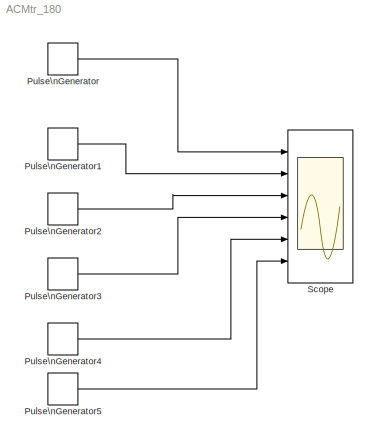
MODEL ACMtr_180
KIND model
BLOCK [DiscretePulseGenerator] Pulse\nGenerator
  Period = 20e-3
  Ports = [0, 1]
  PulseType = Time based
  PulseWidth = 50
  SID = 1
BLOCK [DiscretePulseGenerator] Pulse\nGenerator1
  Period = 20e-3
  PhaseDelay = 20e-3/6
  Ports = [0, 1]
  PulseType = Time based
  PulseWidth = 50
  SID = 2
BLOCK [DiscretePulseGenerator] Pulse\nGenerator2
  Period = 20e-3
  PhaseDelay = 2*(20e-3/6)
  Ports = [0, 1]
  PulseType = Time based
  PulseWidth = 50
  SID = 3
BLOCK [DiscretePulseGenerator] Pulse\nGenerator3
  Period = 20e-3
  PhaseDelay = 3*(20e-3/6)
  Ports = [0, 1]
  PulseType = Time based
  PulseWidth = 50
  SID = 4
BLOCK [DiscretePulseGenerator] Pulse\nGenerator4
  Period = 20e-3
  PhaseDelay = 4*(20e-3/6)
  Ports = [0, 1]
  PulseType = Time based
  PulseWidth = 50
  SID = 5
BLOCK [DiscretePulseGenerator] Pulse\nGenerator5
  Period = 20e-3
  PhaseDelay = 5*(20e-3/6)
  Ports = [0, 1]
  PulseType = Time based
  PulseWidth = 50
  SID = 6
BLOCK [Scope] Scope
  DataFormat = StructureWithTime
  Decimation = 1
  Floating = off
  Grid = on
  LimitDataPoints = off
  MaxDataPoints = 5000
  NumInputPorts = 6
  Ports = [6]
  SID = 7
  SampleInput = off
  SampleTime = -1
  SaveName = ScopeData
  SaveToWorkspace = off
  ShowLegends = off
  TickLabels = OneTimeTick
  TimeRange = auto
  YMax = 1.125~1.125~1.125~1.125~1.125~1.125
  YMin = -0.125~-0.125~-0.125~-0.125~-0.125~-0.125
  ZoomMode = on
LINE Pulse\nGenerator1:1 -> Scope:2
LINE Pulse\nGenerator2:1 -> Scope:3
LINE Pulse\nGenerator3:1 -> Scope:4
LINE Pulse\nGenerator4:1 -> Scope:5
LINE Pulse\nGenerator5:1 -> Scope:6
LINE Pulse\nGenerator:1 -> Scope:1
